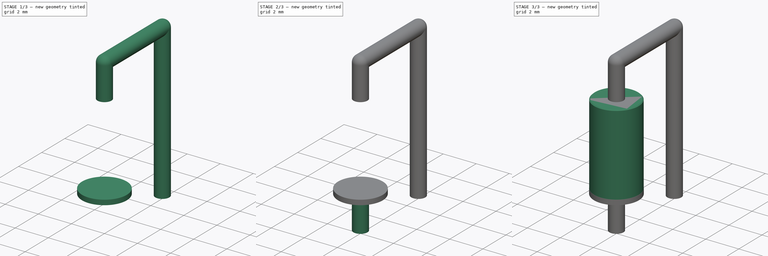
[diagram: build sequence overview — one tinted view per stage of 3, left to right]
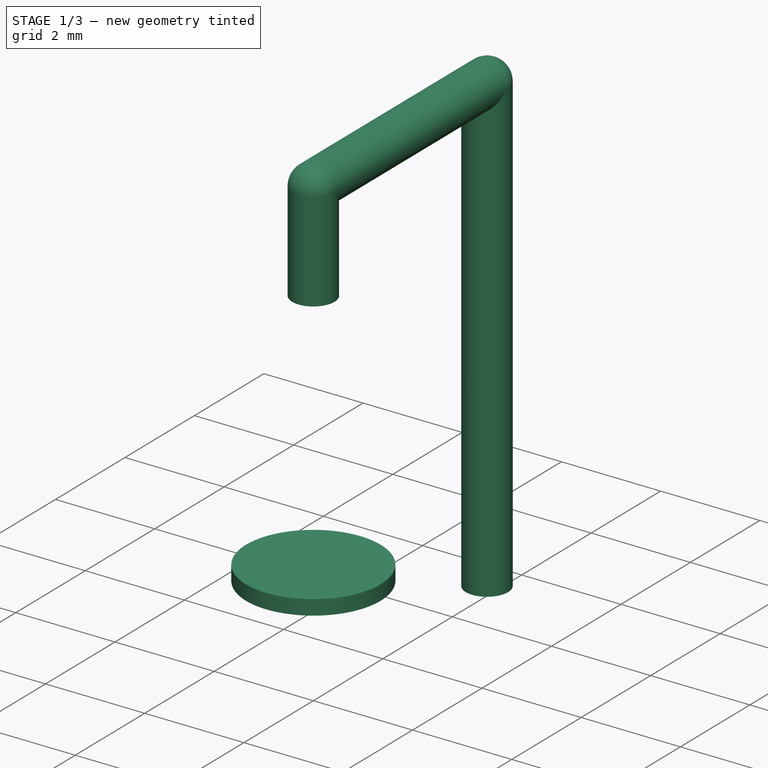
[diagram: stage 1 of 3 — iso view after this stage's code; geometry added in this stage tinted green]
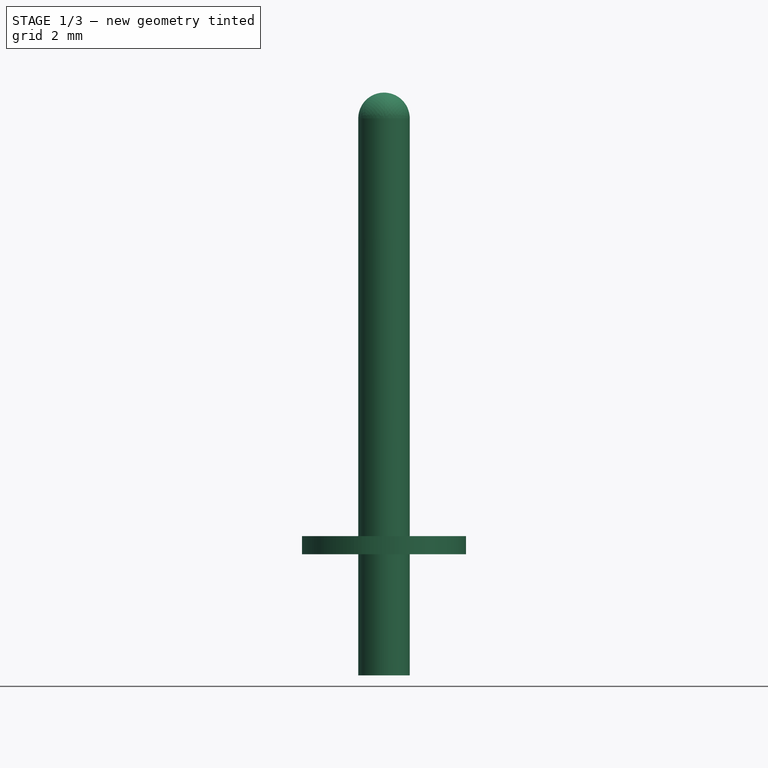
[diagram: stage 1 of 3 — front view after this stage's code; geometry added in this stage tinted green]
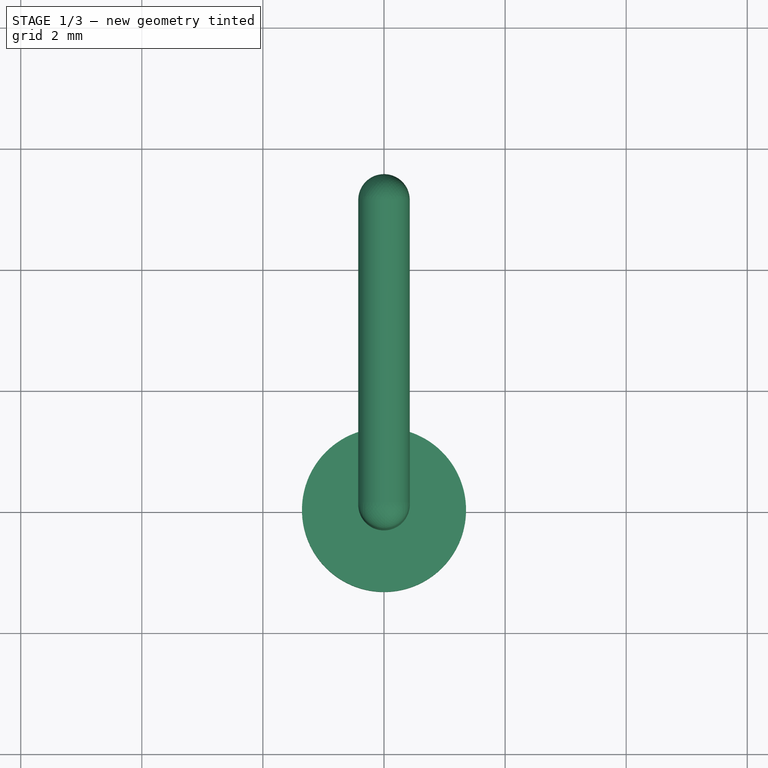
[diagram: stage 1 of 3 — top view after this stage's code; geometry added in this stage tinted green]
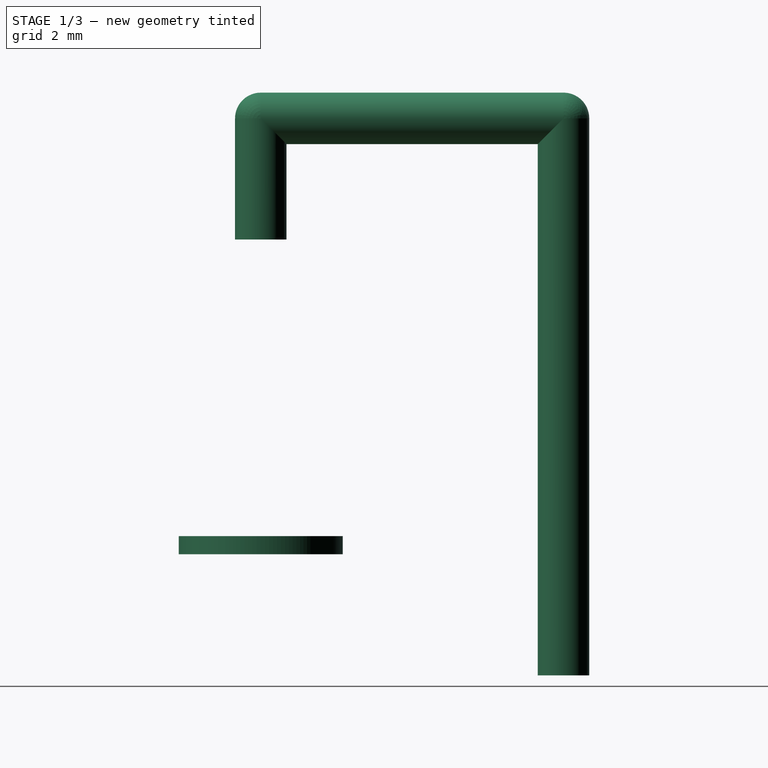
[diagram: stage 1 of 3 — right view after this stage's code; geometry added in this stage tinted green]
FCSTD DOCUMENT  (FreeCAD 0.18R4 (GitTag))
Label: diodeThmDO_V
License: All rights reserved
LicenseURL: http://en.wikipedia.org/wiki/All_rights_reserved
objects: Sketcher::SketchObject×5, PartDesign::Body×4, PartDesign::Pad×3, Spreadsheet::Sheet×1, PartDesign::Chamfer×1, PartDesign::AdditivePipe×1, App::Part×1
note: 18 computed .brp shape members not serialized (recipe doc carries the construction recipe); baked Part::Feature solids carry a one-line shape summary decoded from their .brp

FEATURE [PartDesign::Body] Body001
  Group = -> [Sketch001,Pad001]
  Origin = -> Origin002
  Tip = -> Pad001
FEATURE [Sketcher::SketchObject] Sketch002
  MapMode = 5
  Placement = pos=(0,0,0) rot=(0.57735,0.57735,0.57735;2.0944rad)
  Support = -> [YZ_Plane003]
  expr: Constraints[8] = Spreadsheet.B3
  expr: Constraints[7] = Spreadsheet.B4
  expr: Constraints[6] = Spreadsheet.B5
  sketch-geometry (3):
    g0: LineSegment StartX=5 StartY=-2 StartZ=0 EndX=5 EndY=7.2 EndZ=0
    g1: LineSegment StartX=5 StartY=7.2 StartZ=0 EndX=0 EndY=7.2 EndZ=0
    g2: LineSegment StartX=0 StartY=7.2 StartZ=0 EndX=0 EndY=5.2 EndZ=0
  constraints (10):
    c: Vertical(g0)
    c: Coincident(g0,g1)
    c: PointOnObject(g1,g-2)
    c: Horizontal(g1)
    c: Coincident(g1,g2)
    c: PointOnObject(g2,g-2)
    c: DistanceX(g0) = 5
    c: DistanceY(g2,g2) = 2
    c: DistanceY(g2) = 5.2
    c: DistanceY(g0,g-1) = 2
FEATURE [Sketcher::SketchObject] Sketch003
  MapMode = 5
  Support = -> [XY_Plane003]
  expr: Constraints[2] = Spreadsheet.B5
  expr: Constraints[1] = Spreadsheet.B2
  sketch-geometry (1):
    g0: Circle CenterX=0 CenterY=5 CenterZ=0 NormalX=0 NormalY=0 NormalZ=1 AngleXU=0 Radius=0.425
  constraints (3):
    c: PointOnObject(g0,g-2)
    c: Diameter(g0) = 0.85
    c: DistanceY(g0) = 5
FEATURE [PartDesign::AdditivePipe] AdditivePipe
  AuxilleryCurvelinear = true
  AuxillerySpineTangent = false
  Binormal = (0,0,0)
  Mode = 0
  Profile = -> Sketch003
  Spine = -> Sketch002 [Edge3,Edge2,Edge1]
  SpineTangent = false
  Transformation = 0
  Transition = 2
FEATURE [PartDesign::Body] Body002
  Group = -> [Sketch002,Sketch003,AdditivePipe]
  Origin = -> Origin003
  Tip = -> AdditivePipe
FEATURE [Sketcher::SketchObject] Sketch004
  MapMode = 5
  Support = -> [XY_Plane004]
  expr: Constraints[1] = Spreadsheet.E1
  sketch-geometry (1):
    g0: Circle CenterX=0 CenterY=0 CenterZ=0 NormalX=0 NormalY=0 NormalZ=1 AngleXU=0 Radius=1.355
  constraints (3):
    c: PointOnObject(g0,g-2)
    c: Diameter(g0) = 2.71
    c: PointOnObject(g0,g-1)
FEATURE [PartDesign::Pad] Pad002
  Length = 0.3
  Length2 = 100
  Profile = -> Sketch004
  Type = 0
FEATURE [PartDesign::Body] Body003
  Group = -> [Sketch004,Pad002]
  Origin = -> Origin004
  Placement = pos=(0,0,0.5) rot=(0,0,1;0rad)
  Tip = -> Pad002
  expr: Placement.Base.z = Spreadsheet.B6
FEATURE [App::Part] Part
  Group = -> [Body,Spreadsheet,Body001,Body002,Body003]
  Origin = -> Origin
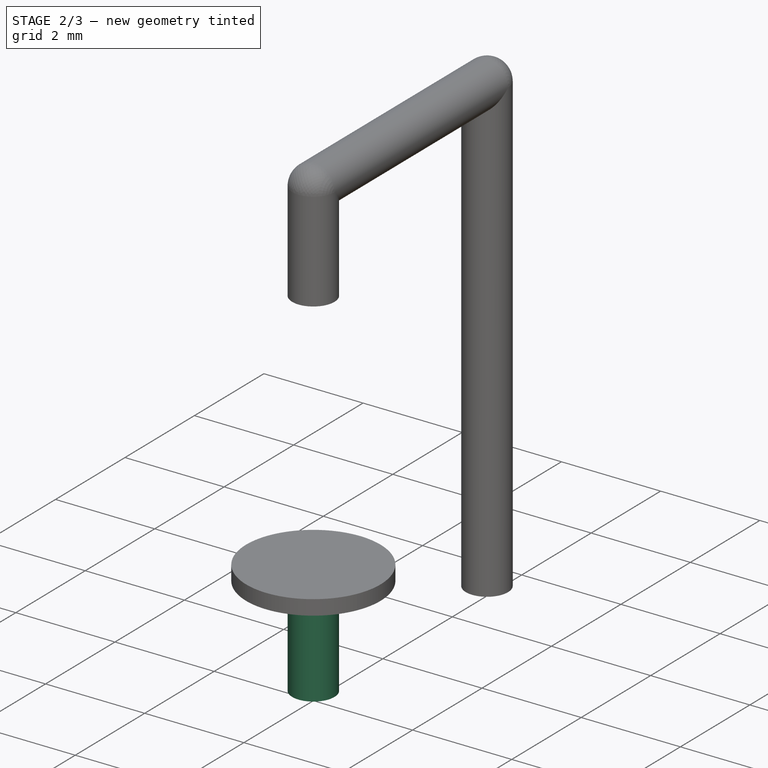
[diagram: stage 2 of 3 — iso view after this stage's code; geometry added in this stage tinted green]
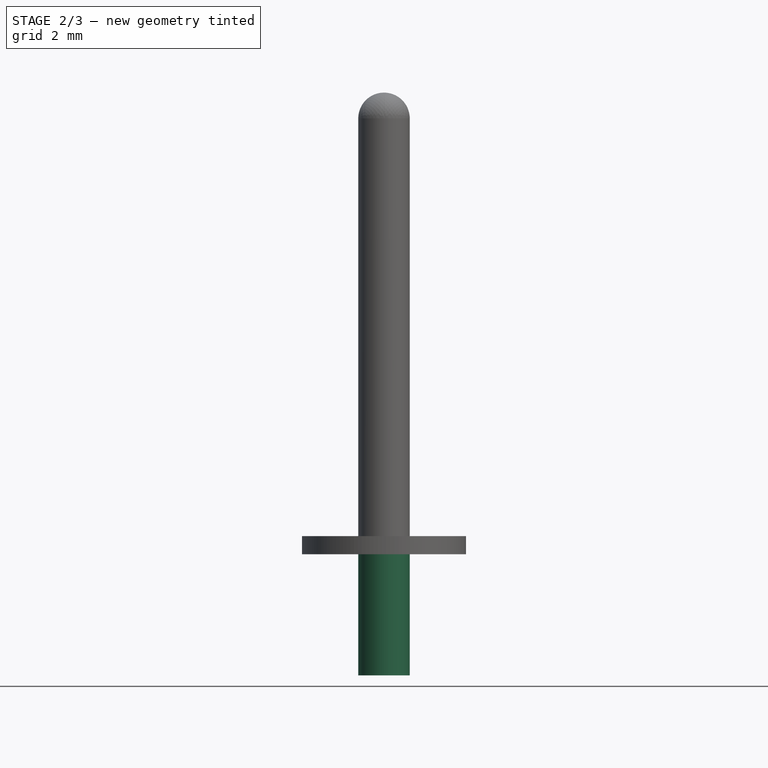
[diagram: stage 2 of 3 — front view after this stage's code; geometry added in this stage tinted green]
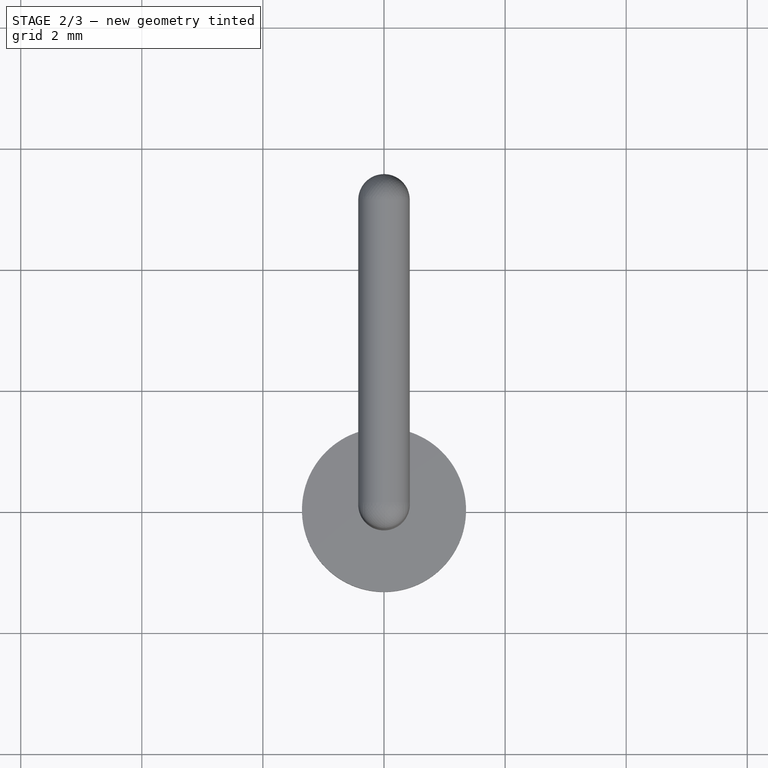
[diagram: stage 2 of 3 — top view after this stage's code; geometry added in this stage tinted green]
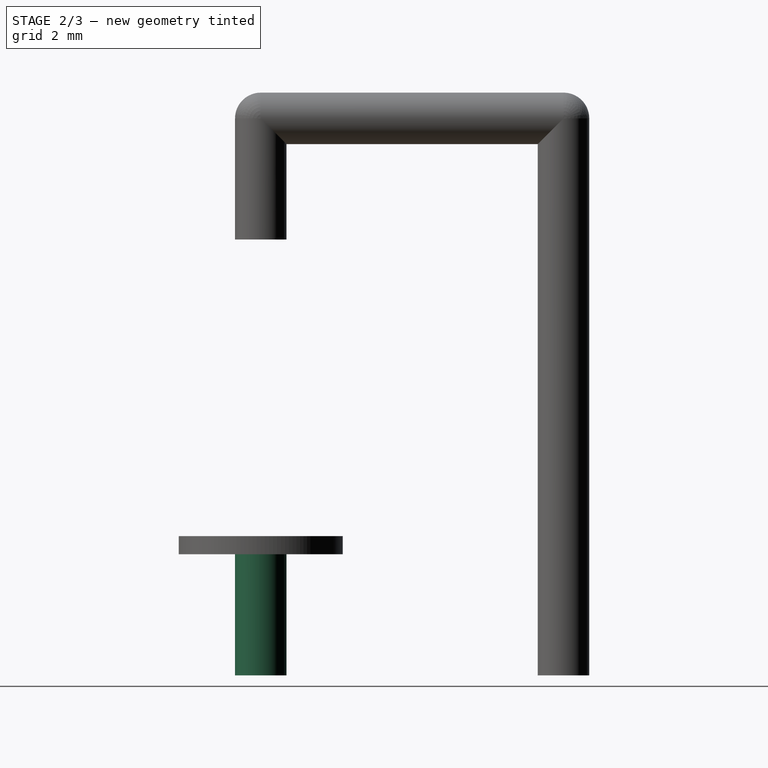
[diagram: stage 2 of 3 — right view after this stage's code; geometry added in this stage tinted green]
FEATURE [PartDesign::Body] Body
  Group = -> [Sketch,Pad,Chamfer]
  Origin = -> Origin001
  Tip = -> Chamfer
FEATURE [Sketcher::SketchObject] Sketch001
  MapMode = 5
  Placement = pos=(0,0,0) rot=(0,1,0;3.14159rad)
  Support = -> [XY_Plane002]
  expr: Constraints[2] = Spreadsheet.B2
  sketch-geometry (1):
    g0: Circle CenterX=0 CenterY=0 CenterZ=0 NormalX=0 NormalY=0 NormalZ=1 AngleXU=0 Radius=0.425
  constraints (3):
    c: PointOnObject(g0,g-2)
    c: PointOnObject(g0,g-1)
    c: Diameter(g0) = 0.85
FEATURE [PartDesign::Pad] Pad001
  Length = 2
  Length2 = 100
  Profile = -> Sketch001
  Type = 0
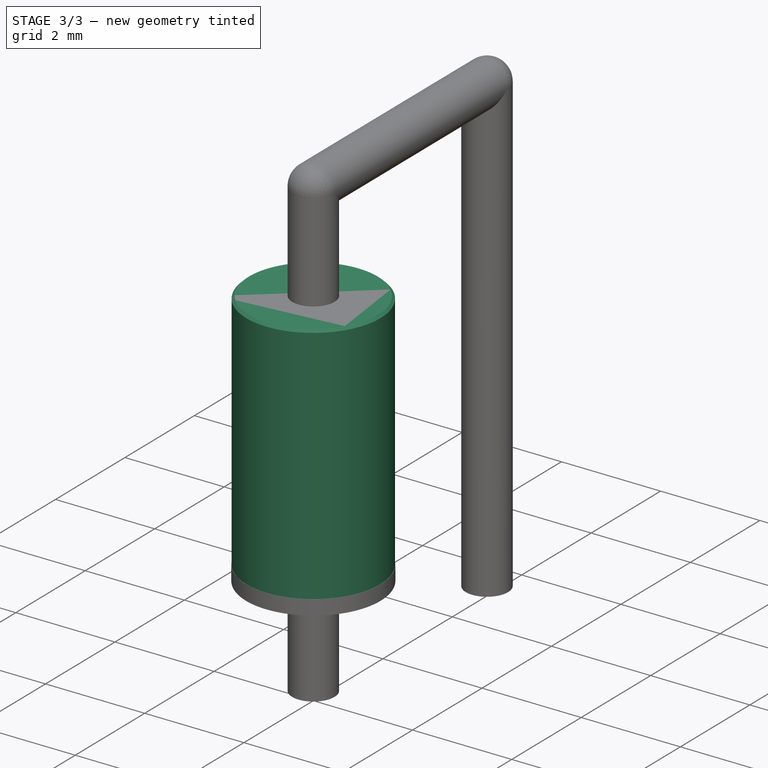
[diagram: stage 3 of 3 — iso view after this stage's code; geometry added in this stage tinted green]
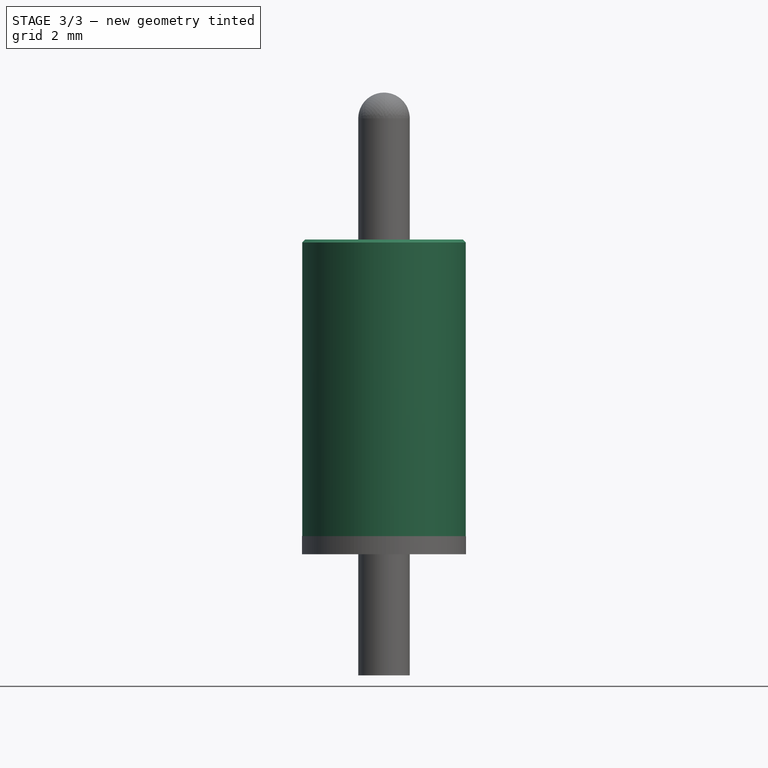
[diagram: stage 3 of 3 — front view after this stage's code; geometry added in this stage tinted green]
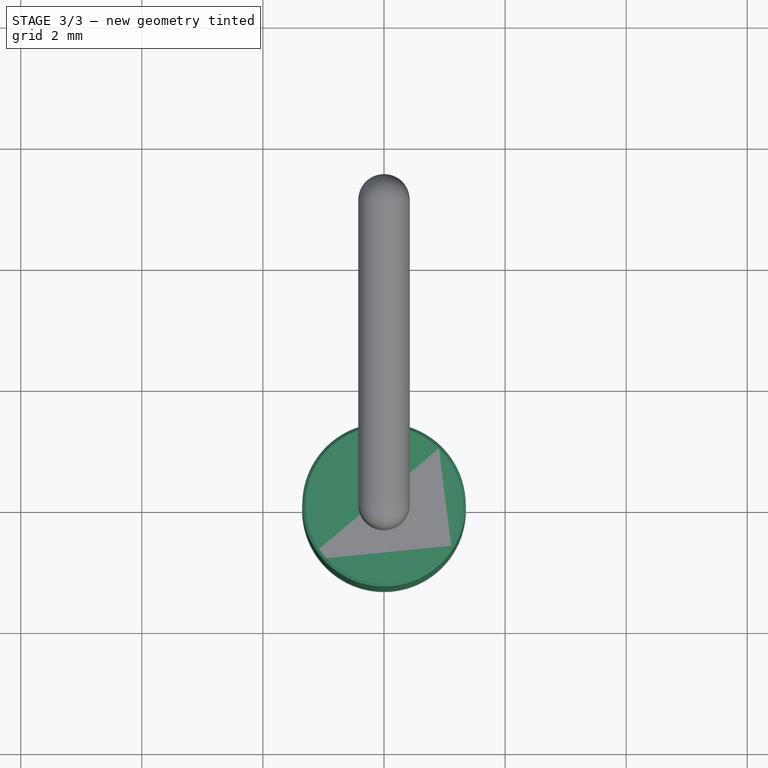
[diagram: stage 3 of 3 — top view after this stage's code; geometry added in this stage tinted green]
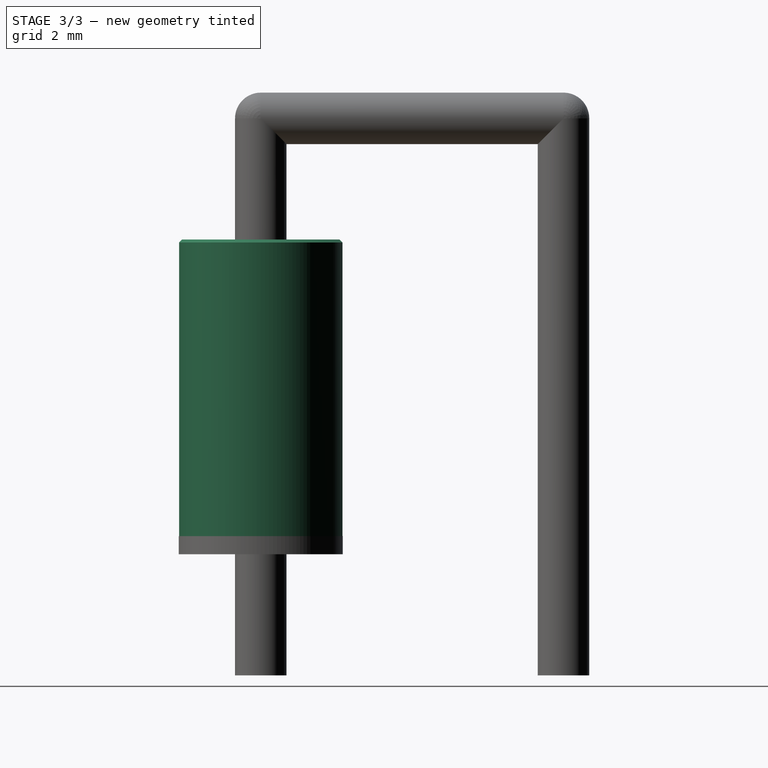
[diagram: stage 3 of 3 — right view after this stage's code; geometry added in this stage tinted green]
FEATURE [Sketcher::SketchObject] Sketch
  MapMode = 5
  Support = -> [XY_Plane001]
  expr: Constraints[2] = Spreadsheet.B1
  sketch-geometry (1):
    g0: Circle CenterX=0 CenterY=0 CenterZ=0 NormalX=0 NormalY=0 NormalZ=1 AngleXU=0 Radius=1.35
  constraints (3):
    c: PointOnObject(g0,g-2)
    c: PointOnObject(g0,g-1)
    c: Diameter(g0) = 2.7
FEATURE [Spreadsheet::Sheet] Spreadsheet
  cells = A1=d1; B1=2.7; E1==B1 + 0.01; A2=d2; B2=0.85; A3=l1; B3=5.2; A4=l2; B4=2; A5=r; B5=5; A6=l3; B6=0.5; E6=0.5; F6==B3 - 0.5
FEATURE [PartDesign::Pad] Pad
  Length = 5.2
  Length2 = 100
  Profile = -> Sketch
  Type = 0
  expr: Length = Spreadsheet.B3
FEATURE [PartDesign::Chamfer] Chamfer
  Base = -> Pad [Edge3,Edge2]
  BaseFeature = -> Pad
  Size = 0.05
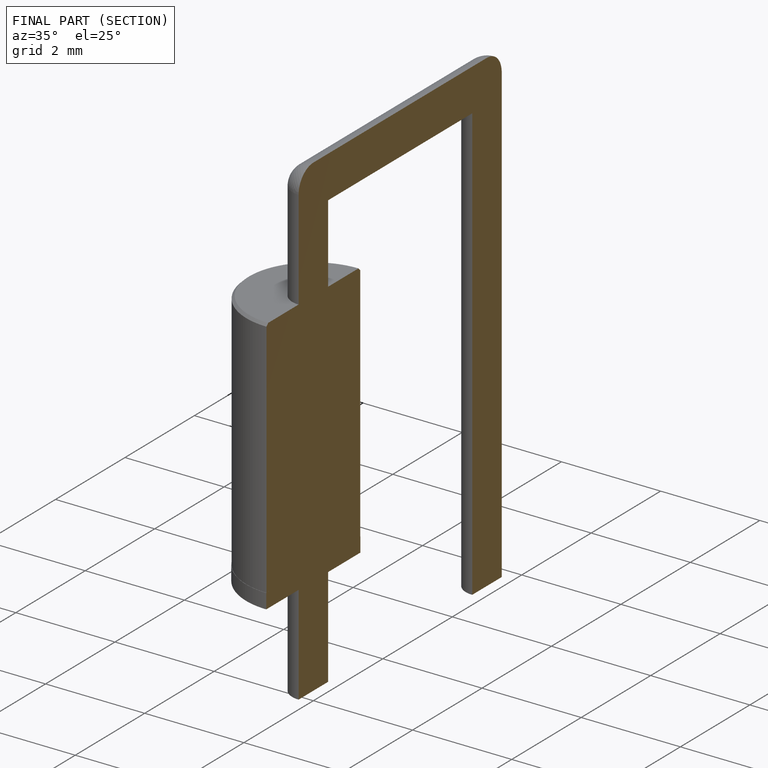
[diagram: finished part — half-section view (interior)]
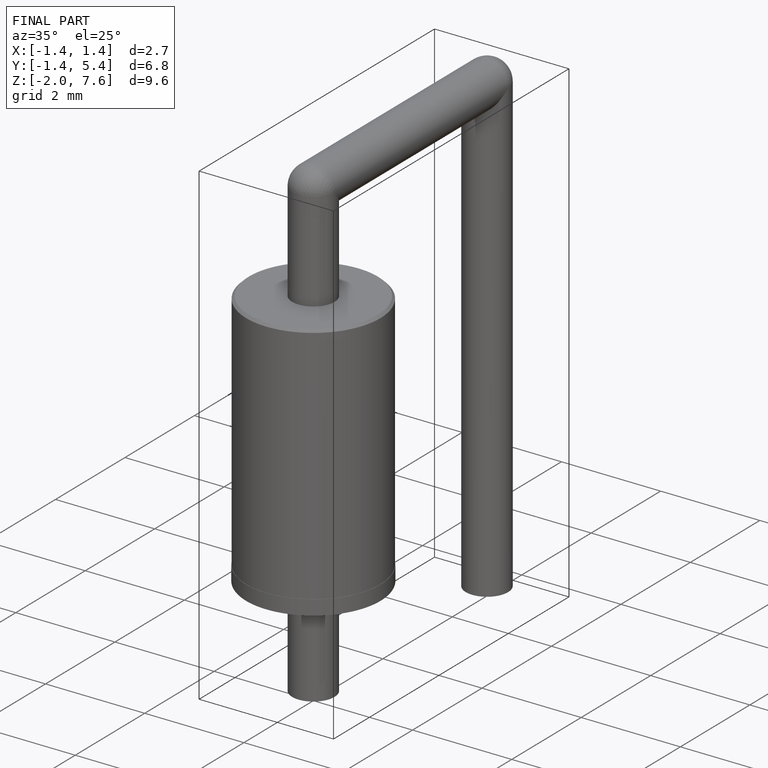
[diagram: finished part — iso view with bounding-box wireframe]
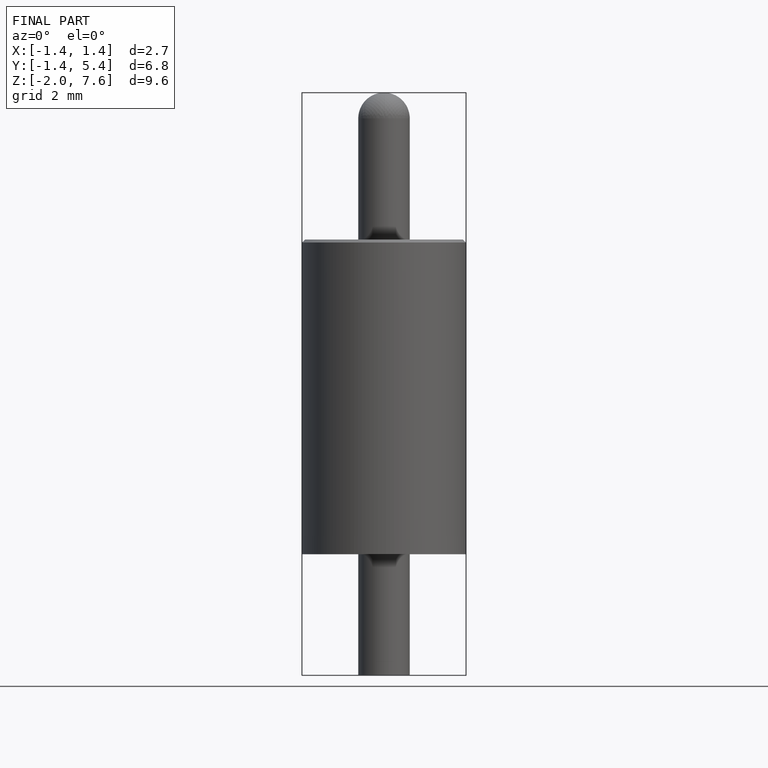
[diagram: finished part — front view with bounding-box wireframe]
